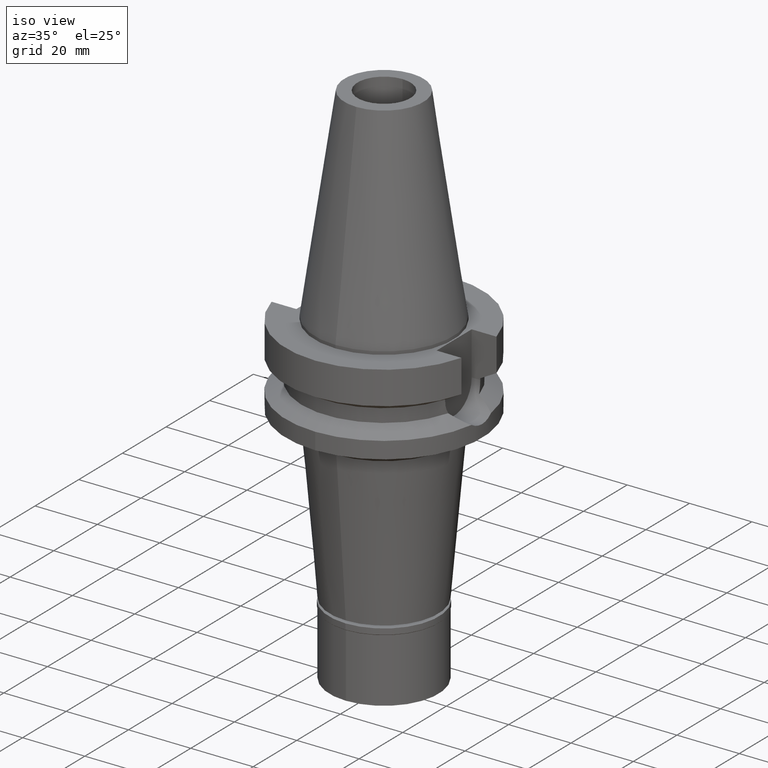
[diagram: clean part render]
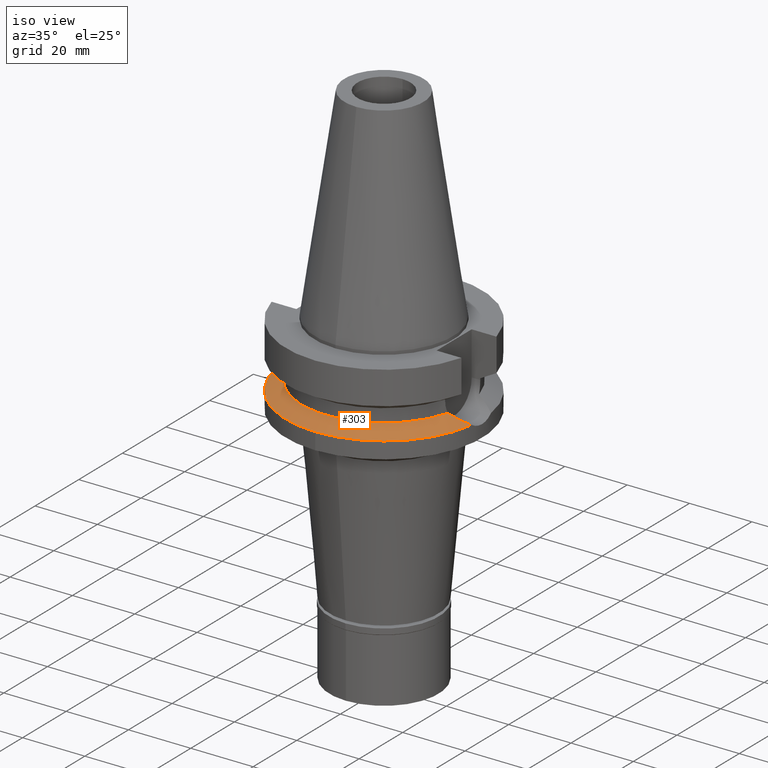
[diagram: same view with one face highlighted and labeled with its STEP entity id]
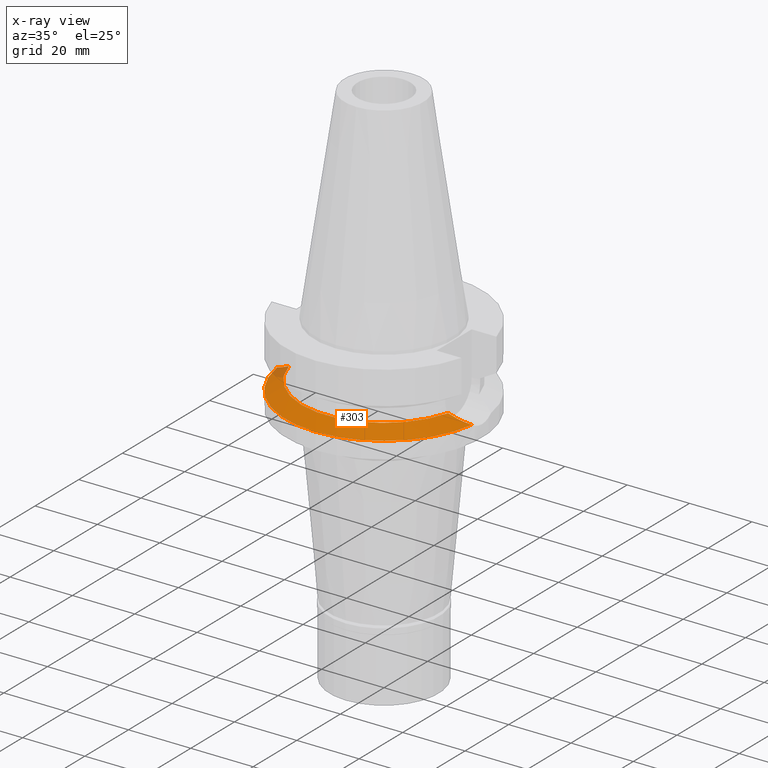
[diagram: x-ray of the same camera — body ghosted, the highlighted face saturated]
A machine part, iso view. The second image highlights one B-rep face of the part: STEP entity #303.
The next image is the same camera in x-ray: the body ghosted, the highlighted face saturated — about 3% of this face is hidden behind the body in this view.
In plain terms, the highlighted conical surface has half-angle 60 deg.
Its self-contained STEP definition (entity closure, byte-faithful):
#27 = ORIENTED_EDGE ( 'NONE', *, *, #1420, .F. ) ;
#54 = EDGE_LOOP ( 'NONE', ( #3104, #528, #1518, #1423, #27 ) ) ;
#96 = VERTEX_POINT ( 'NONE', #602 ) ;
#111 = CARTESIAN_POINT ( 'NONE',  ( 28.61952987472136201, -5.988409593767684669, -20.32928853261340052 ) ) ;
#147 = CARTESIAN_POINT ( 'NONE',  ( 26.74381619295357027, -6.764686498412363136, -19.37043794591426860 ) ) ;
#174 = CARTESIAN_POINT ( 'NONE',  ( 25.53175183775000079, -7.097862220092999941, -18.74774300138999905 ) ) ;
#175 = CARTESIAN_POINT ( 'NONE',  ( 28.96951744265465223, -5.822993042047945877, -20.50791940928598933 ) ) ;
#190 = DIRECTION ( 'NONE',  ( 0.9898094849552905306, -0.1423979757318985240, 0.0000000000000000000 ) ) ;
#200 = CARTESIAN_POINT ( 'NONE',  ( -28.90137288117141878, -5.856393695850977466, -20.47329639326756023 ) ) ;
#205 = DIRECTION ( 'NONE',  ( 0.0000000000000000000, -1.000000000000000000, 0.0000000000000000000 ) ) ;
#303 = ADVANCED_FACE ( 'NONE', ( #2655 ), #2834, .T. ) ;
#305 = DIRECTION ( 'NONE',  ( -0.9634623335000935818, -0.2678438573619981722, 0.0000000000000000000 ) ) ;
#317 = EDGE_CURVE ( 'NONE', #747, #3018, #1454, .T. ) ;
#329 = VERTEX_POINT ( 'NONE', #174 ) ;
#385 = CARTESIAN_POINT ( 'NONE',  ( 28.50305473222086761, -6.041666333603841643, -20.26983013936102296 ) ) ;
#399 = CARTESIAN_POINT ( 'NONE',  ( 28.73759522508826336, -5.933525848792730706, -20.38955323646145956 ) ) ;
#442 = CARTESIAN_POINT ( 'NONE',  ( -29.91427981895173005, -5.323654264957231597, -20.99025992100829896 ) ) ;
#454 = CARTESIAN_POINT ( 'NONE',  ( -30.85491276307930875, -4.731410132183781592, -21.46950411540202808 ) ) ;
#478 = CIRCLE ( 'NONE', #833, 31.50000000000000000 ) ;
#528 = ORIENTED_EDGE ( 'NONE', *, *, #317, .F. ) ;
#602 = CARTESIAN_POINT ( 'NONE',  ( -31.17899877608999759, -4.485536235554000051, -21.63449434733000132 ) ) ;
#611 = EDGE_CURVE ( 'NONE', #747, #329, #1766, .T. ) ;
#619 = CARTESIAN_POINT ( 'NONE',  ( 28.53006094587165009, -6.029395381357314676, -20.28361679709920651 ) ) ;
#639 = CARTESIAN_POINT ( 'NONE',  ( 25.53175183775000079, -7.097862220092999941, -18.74774300138999905 ) ) ;
#641 = DIRECTION ( 'NONE',  ( 0.0000000000000000000, 0.0000000000000000000, -1.000000000000000000 ) ) ;
#707 = CARTESIAN_POINT ( 'NONE',  ( -29.06793370069313198, -5.774989919560167273, -20.55834678393752313 ) ) ;
#747 = VERTEX_POINT ( 'NONE', #1478 ) ;
#833 = AXIS2_PLACEMENT_3D ( 'NONE', #1375, #641, #1628 ) ;
#874 = CARTESIAN_POINT ( 'NONE',  ( 0.0000000000000000000, 0.0000000000000000000, -20.19111867435999841 ) ) ;
#908 = CARTESIAN_POINT ( 'NONE',  ( -27.91292627605387011, -6.327668844575878637, -19.96852071600007505 ) ) ;
#923 = CARTESIAN_POINT ( 'NONE',  ( -26.80910056756276205, -6.746740942523380191, -19.40397762542978910 ) ) ;
#1067 = EDGE_CURVE ( 'NONE', #1289, #329, #2351, .T. ) ;
#1122 = CARTESIAN_POINT ( 'NONE',  ( -25.53175183775000079, -7.097862220092999941, -18.74774300138999905 ) ) ;
#1170 = CARTESIAN_POINT ( 'NONE',  ( -30.49822227216838755, -4.972651065609727361, -21.28793183650920895 ) ) ;
#1186 = AXIS2_PLACEMENT_3D ( 'NONE', #1241, #2221, #305 ) ;
#1241 = CARTESIAN_POINT ( 'NONE',  ( 0.0000000000000000000, 0.0000000000000000000, -18.74774300138999905 ) ) ;
#1289 = VERTEX_POINT ( 'NONE', #1122 ) ;
#1375 = CARTESIAN_POINT ( 'NONE',  ( 0.0000000000000000000, 0.0000000000000000000, -21.63449434733000132 ) ) ;
#1420 = EDGE_CURVE ( 'NONE', #96, #1289, #1954, .T. ) ;
#1423 = ORIENTED_EDGE ( 'NONE', *, *, #1067, .F. ) ;
#1454 = CIRCLE ( 'NONE', #2637, 31.50000000000001421 ) ;
#1478 = CARTESIAN_POINT ( 'NONE',  ( 31.17899877608999759, -4.485536235554000051, -21.63449434733000132 ) ) ;
#1518 = ORIENTED_EDGE ( 'NONE', *, *, #611, .T. ) ;
#1586 = CARTESIAN_POINT ( 'NONE',  ( 28.51721398832023624, -6.035237504180527957, -20.27705846290945857 ) ) ;
#1614 = CARTESIAN_POINT ( 'NONE',  ( 31.17899877608999759, -4.485536235554000051, -21.63449434733000132 ) ) ;
#1624 = DIRECTION ( 'NONE',  ( 0.0000000000000000000, 0.0000000000000000000, -1.000000000000000000 ) ) ;
#1628 = DIRECTION ( 'NONE',  ( 0.0000000000000000000, -1.000000000000000000, 0.0000000000000000000 ) ) ;
#1667 = CARTESIAN_POINT ( 'NONE',  ( -29.71148121507111739, -5.438841908908276679, -20.88682261267824103 ) ) ;
#1766 = B_SPLINE_CURVE_WITH_KNOTS ( 'NONE', 3,
 ( #1614, #2072, #3057, #2358, #2095, #1821, #175, #399, #111, #2808, #619, #1586, #2578, #385, #1836, #147, #639 ),
 .UNSPECIFIED., .F., .F.,
 ( 4, 2, 2, 1, 1, 1, 1, 1, 2, 2, 4 ),
 ( 0.0000000000000000000, 0.2499999999999278910, 0.3749999999998925859, 0.4374999999998743783, 0.4687499999998654965, 0.4843749999998604450, 0.4921874999998579470, 0.4960937499998566702, 0.4980468749998568367, 0.4999999999998570033, 1.000000000000000000 ),
 .UNSPECIFIED. ) ;
#1794 = AXIS2_PLACEMENT_3D ( 'NONE', #874, #2378, #205 ) ;
#1821 = CARTESIAN_POINT ( 'NONE',  ( 29.16108406474739922, -5.727078292551732730, -20.60566772621288578 ) ) ;
#1836 = CARTESIAN_POINT ( 'NONE',  ( 27.73413391209855305, -6.390229313855593674, -19.87729119561073432 ) ) ;
#1856 = CARTESIAN_POINT ( 'NONE',  ( 0.0000000000000000000, -31.50000000000000000, -21.63449434733000132 ) ) ;
#1954 = B_SPLINE_CURVE_WITH_KNOTS ( 'NONE', 3,
 ( #2898, #454, #1170, #442, #1667, #2850, #3096, #707, #2152, #200, #908, #923, #2418 ),
 .UNSPECIFIED., .F., .F.,
 ( 4, 2, 2, 1, 2, 2, 4 ),
 ( 0.0000000000000000000, 0.2500000000000041078, 0.3750000000000061617, 0.4375000000000075495, 0.4687500000000078826, 0.5000000000000082157, 1.000000000000000000 ),
 .UNSPECIFIED. ) ;
#2072 = CARTESIAN_POINT ( 'NONE',  ( 30.83533554958475875, -4.746262750229630178, -21.45953747424909963 ) ) ;
#2095 = CARTESIAN_POINT ( 'NONE',  ( 29.53456838489935521, -5.534047291044670303, -20.79621982321736340 ) ) ;
#2152 = CARTESIAN_POINT ( 'NONE',  ( -28.95634549940901792, -5.829783326866787796, -20.50136817205541107 ) ) ;
#2221 = DIRECTION ( 'NONE',  ( 0.0000000000000000000, 0.0000000000000000000, 1.000000000000000000 ) ) ;
#2351 = CIRCLE ( 'NONE', #1186, 26.49999999999998224 ) ;
#2358 = CARTESIAN_POINT ( 'NONE',  ( 29.77069029054985094, -5.403762031502717278, -20.91666183875459950 ) ) ;
#2378 = DIRECTION ( 'NONE',  ( 0.0000000000000000000, 0.0000000000000000000, -1.000000000000000000 ) ) ;
#2418 = CARTESIAN_POINT ( 'NONE',  ( -25.53175183775000079, -7.097862220092999941, -18.74774300138999905 ) ) ;
#2578 = CARTESIAN_POINT ( 'NONE',  ( 28.50864309581668721, -6.039130999120075671, -20.27268302101677477 ) ) ;
#2637 = AXIS2_PLACEMENT_3D ( 'NONE', #2824, #1624, #190 ) ;
#2655 = FACE_OUTER_BOUND ( 'NONE', #54, .T. ) ;
#2808 = CARTESIAN_POINT ( 'NONE',  ( 28.55997150534223650, -6.015750679437507742, -20.29888577633043312 ) ) ;
#2824 = CARTESIAN_POINT ( 'NONE',  ( 0.0000000000000000000, 0.0000000000000000000, -21.63449434733000132 ) ) ;
#2834 = CONICAL_SURFACE ( 'NONE', #1794, 29.00000000000000000, 1.047197551196400456 ) ;
#2850 = CARTESIAN_POINT ( 'NONE',  ( -29.39505663003762237, -5.608383756552233201, -20.72534610654349407 ) ) ;
#2898 = CARTESIAN_POINT ( 'NONE',  ( -31.17899877608999759, -4.485536235554000051, -21.63449434733000132 ) ) ;
#2999 = EDGE_CURVE ( 'NONE', #3018, #96, #478, .T. ) ;
#3018 = VERTEX_POINT ( 'NONE', #1856 ) ;
#3057 = CARTESIAN_POINT ( 'NONE',  ( 30.44041057306440479, -5.010859520948095280, -21.25820973796909286 ) ) ;
#3096 = CARTESIAN_POINT ( 'NONE',  ( -29.23378766771774551, -5.692344475498301470, -20.64302832027229329 ) ) ;
#3104 = ORIENTED_EDGE ( 'NONE', *, *, #2999, .F. ) ;